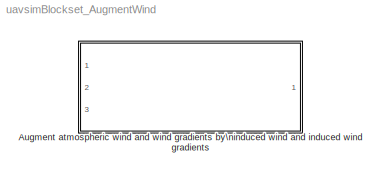
MODEL uavsimBlockset_AugmentWind
KIND library
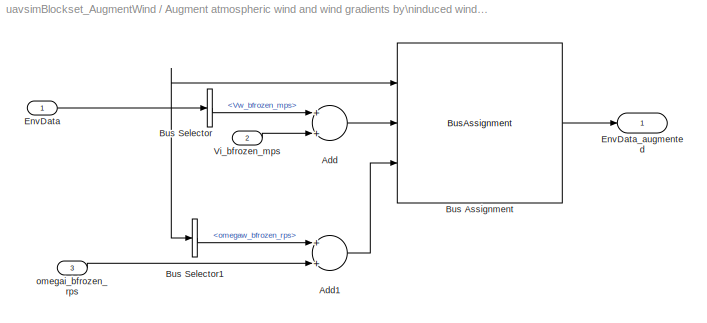
BLOCK [SubSystem] Augment atmospheric wind and wind gradients by\ninduced wind and induced wind gradients
  FunctionWithSeparateData = off
  MaskHideContents = off
  MinAlgLoopOccurrences = off
  Opaque = off
  Ports = [3, 1]
  PropExecContextOutsideSubsystem = off
  RTWSystemCode = Auto
  RequestExecContextInheritance = off
  SID = 4002
BLOCK [Sum] Augment atmospheric wind and wind gradients by\ninduced wind and induced wind gradients/Add
  InputSameDT = off
  OutDataTypeStr = Inherit: Inherit via internal rule
  Ports = [2, 1]
  SID = 4042
  SaturateOnIntegerOverflow = off
BLOCK [Sum] Augment atmospheric wind and wind gradients by\ninduced wind and induced wind gradients/Add1
  InputSameDT = off
  OutDataTypeStr = Inherit: Inherit via internal rule
  Ports = [2, 1]
  SID = 4044
  SaturateOnIntegerOverflow = off
BLOCK [BusAssignment] Augment atmospheric wind and wind gradients by\ninduced wind and induced wind gradients/Bus Assignment
  AssignedSignals = Vw_bfrozen_mps,omegaw_bfrozen_rps
  Ports = [3, 1]
  SID = 4014
BLOCK [BusSelector] Augment atmospheric wind and wind gradients by\ninduced wind and induced wind gradients/Bus Selector
  OutputSignals = Vw_bfrozen_mps
  Ports = [1, 1]
  SID = 4005
BLOCK [BusSelector] Augment atmospheric wind and wind gradients by\ninduced wind and induced wind gradients/Bus Selector1
  OutputSignals = omegaw_bfrozen_rps
  Ports = [1, 1]
  SID = 4043
BLOCK [Inport] Augment atmospheric wind and wind gradients by\ninduced wind and induced wind gradients/EnvData
  IconDisplay = Port number
  OutDataTypeStr = Bus: Environment
  SID = 4003
BLOCK [Outport] Augment atmospheric wind and wind gradients by\ninduced wind and induced wind gradients/EnvData_augmented
  IconDisplay = Port number
  OutDataTypeStr = Bus: Environment
  SID = 4004
BLOCK [Inport] Augment atmospheric wind and wind gradients by\ninduced wind and induced wind gradients/Vi_bfrozen_mps
  IconDisplay = Port number
  Port = 2
  SID = 4000
BLOCK [Inport] Augment atmospheric wind and wind gradients by\ninduced wind and induced wind gradients/omegai_bfrozen_rps
  IconDisplay = Port number
  Port = 3
  SID = 4001
LINE Augment atmospheric wind and wind gradients by\ninduced wind and induced wind gradients/Add1:1 -> Augment atmospheric wind and wind gradients by\ninduced wind and induced wind gradients/Bus Assignment:3
LINE Augment atmospheric wind and wind gradients by\ninduced wind and induced wind gradients/Add:1 -> Augment atmospheric wind and wind gradients by\ninduced wind and induced wind gradients/Bus Assignment:2
LINE Augment atmospheric wind and wind gradients by\ninduced wind and induced wind gradients/Bus Assignment:1 -> Augment atmospheric wind and wind gradients by\ninduced wind and induced wind gradients/EnvData_augmented:1
LINE Augment atmospheric wind and wind gradients by\ninduced wind and induced wind gradients/Bus Selector1:1 -> Augment atmospheric wind and wind gradients by\ninduced wind and induced wind gradients/Add1:1
LINE Augment atmospheric wind and wind gradients by\ninduced wind and induced wind gradients/Bus Selector:1 -> Augment atmospheric wind and wind gradients by\ninduced wind and induced wind gradients/Add:1
NET Augment atmospheric wind and wind gradients by\ninduced wind and induced wind gradients/EnvData:1 -> Augment atmospheric wind and wind gradients by\ninduced wind and induced wind gradients/Bus Assignment:1, Augment atmospheric wind and wind gradients by\ninduced wind and induced wind gradients/Bus Selector1:1, Augment atmospheric wind and wind gradients by\ninduced wind and induced wind gradients/Bus Selector:1
LINE Augment atmospheric wind and wind gradients by\ninduced wind and induced wind gradients/Vi_bfrozen_mps:1 -> Augment atmospheric wind and wind gradients by\ninduced wind and induced wind gradients/Add:2
LINE Augment atmospheric wind and wind gradients by\ninduced wind and induced wind gradients/omegai_bfrozen_rps:1 -> Augment atmospheric wind and wind gradients by\ninduced wind and induced wind gradients/Add1:2
note: NET lines group one-source signal fan-out (src -> all destinations, sorted); 1:1 wires keep LINE
